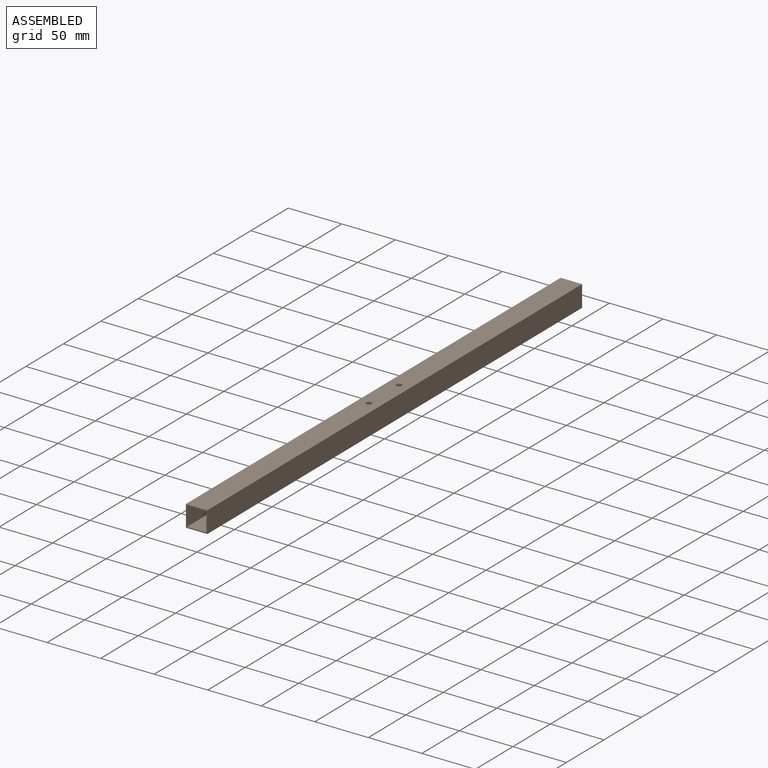
[diagram: assembled view]
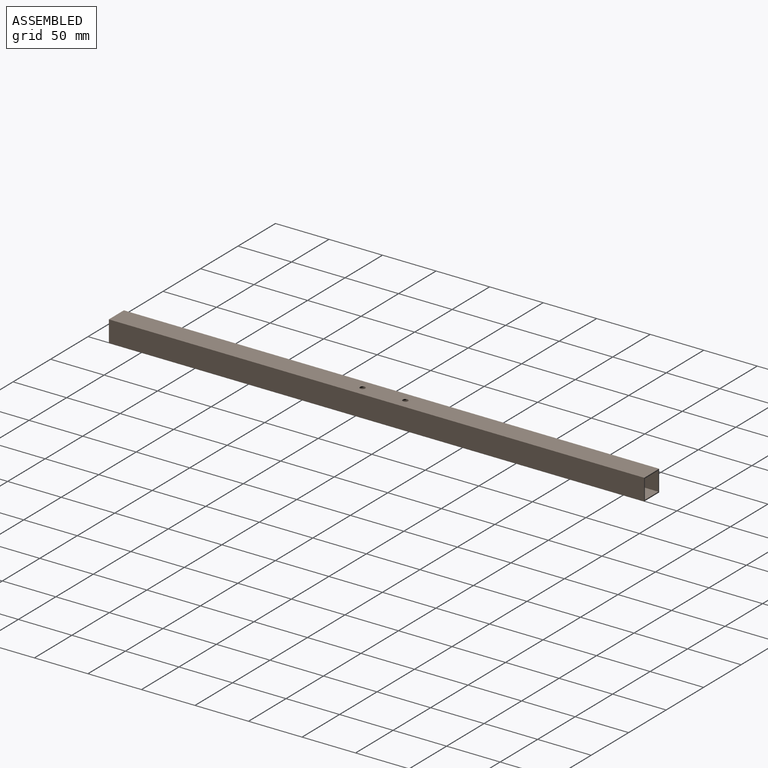
[diagram: assembled view, second angle]
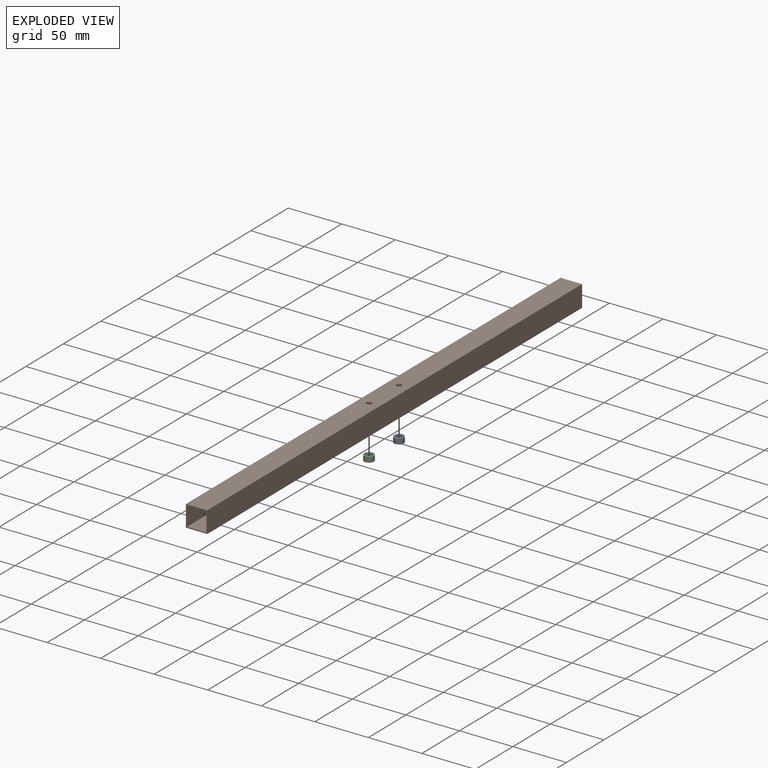
[diagram: exploded view]
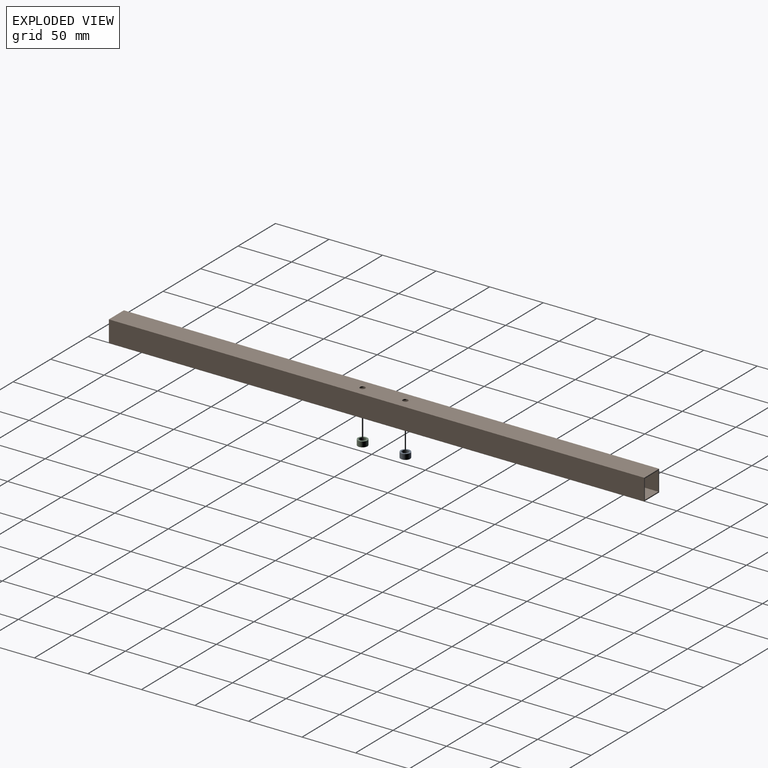
[diagram: exploded view, second angle]
ASSEMBLY  parts=3 mates=2
PART A: 4 faces, bbox 9x9x5 mm
  f0: cylinder r=3.1mm len=6.2mm, axis (0,0,-1), area 97.4mm2, adj f2,f3
  f1: cylinder r=4.5mm len=9mm, axis (0,0,-1), area 141.4mm2, adj f2,f3
  f2: plane 9x9mm, normal (0,0,1), area 33.4mm2, adj f0,f1
  f3: plane 9x9mm, normal (0,0,-1), area 33.4mm2, adj f0,f1
PART B: 15 faces, bbox 20x500x20 mm
  f0: plane 500x20mm, normal (0,0,-1), area 9718.8mm2, adj f1,f7,f8,f9,f12,f13,f14
  f1: plane 500x20mm, normal (1,0,0), area 10000mm2, adj f0,f2,f8,f9
  f2: plane 500x20mm, normal (0,0,1), area 9960.7mm2, adj f1,f7,f8,f9,f10,f11
  f3: plane 500x18mm, normal (-1,0,0), area 9000mm2, adj f4,f6,f8,f9
  f4: plane 500x18mm, normal (0,0,1), area 8718.8mm2, adj f3,f5,f8,f9,f12,f13,f14
  f5: plane 500x18mm, normal (1,0,0), area 9000mm2, adj f4,f6,f8,f9
  f6: plane 500x18mm, normal (0,0,-1), area 8960.7mm2, adj f3,f5,f8,f9,f10,f11
  f7: plane 500x20mm, normal (-1,0,0), area 10000mm2, adj f0,f2,f8,f9
  f8: plane 20x20mm, normal (0,-1,0), area 76mm2, adj f0,f1,f2,f3,f4,f5,f6,f7
  f9: plane 20x20mm, normal (0,1,0), area 76mm2, adj f0,f1,f2,f3,f4,f5,f6,f7
  f10: cylinder r=2.5mm len=5mm, axis (0,0,1), area 15.7mm2, adj f2,f6
  f11: cylinder r=2.5mm len=5mm, axis (0,0,1), area 15.7mm2, adj f2,f6
  f12: cylinder r=7mm len=14mm, axis (0,0,-1), area 44mm2, adj f0,f4
  f13: cylinder r=4.5mm len=9mm, axis (0,0,-1), area 28.3mm2, adj f0,f4
  f14: cylinder r=4.5mm len=9mm, axis (0,0,-1), area 28.3mm2, adj f0,f4
PART C: same geometry as A
PLACE A t=(-135.23,-123.17,-107.77)mm
PLACE B t=(-135.23,106.83,-94.64)mm
PLACE C t=(-135.23,-163.17,-107.89)mm
MATE cylindrical C.f1 <-> B.f14  axis (0,0,-1) through (-135.23,-163.17,-105.39)mm
MATE cylindrical A.f1 <-> B.f13  axis (0,0,-1) through (-135.23,-123.17,-102.77)mm
